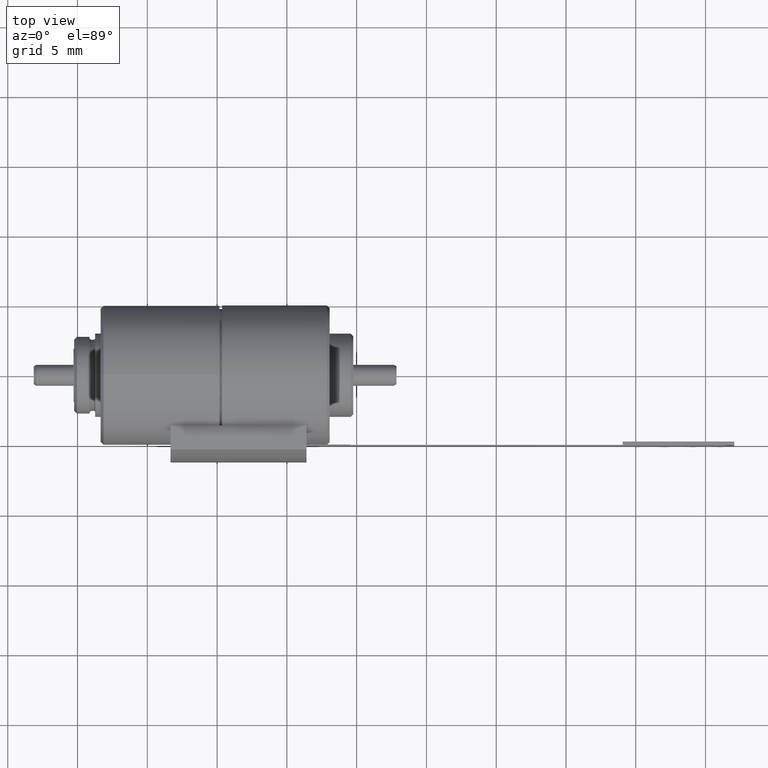
[diagram: clean part render]
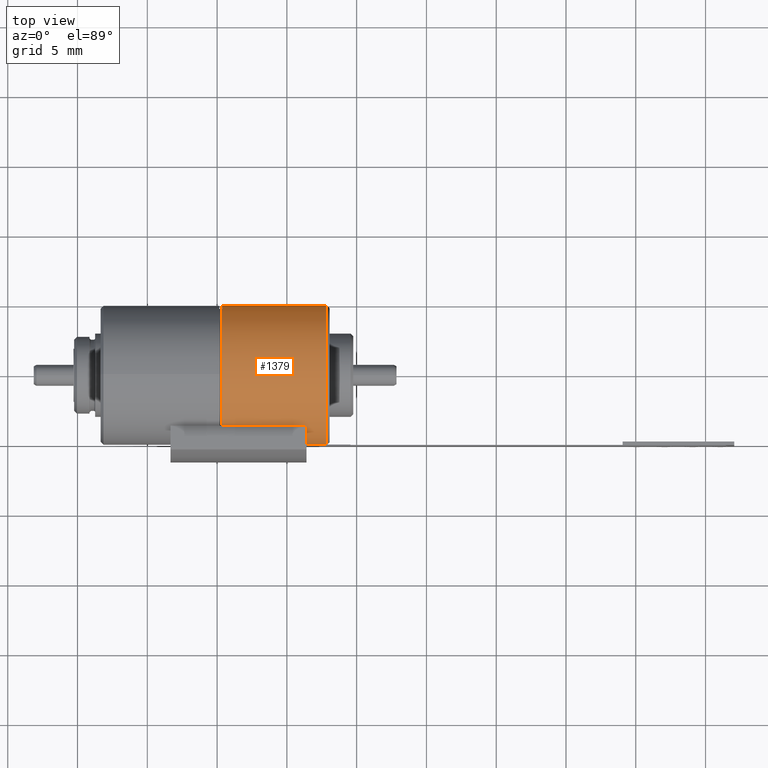
[diagram: same view with one face highlighted and labeled with its STEP entity id]
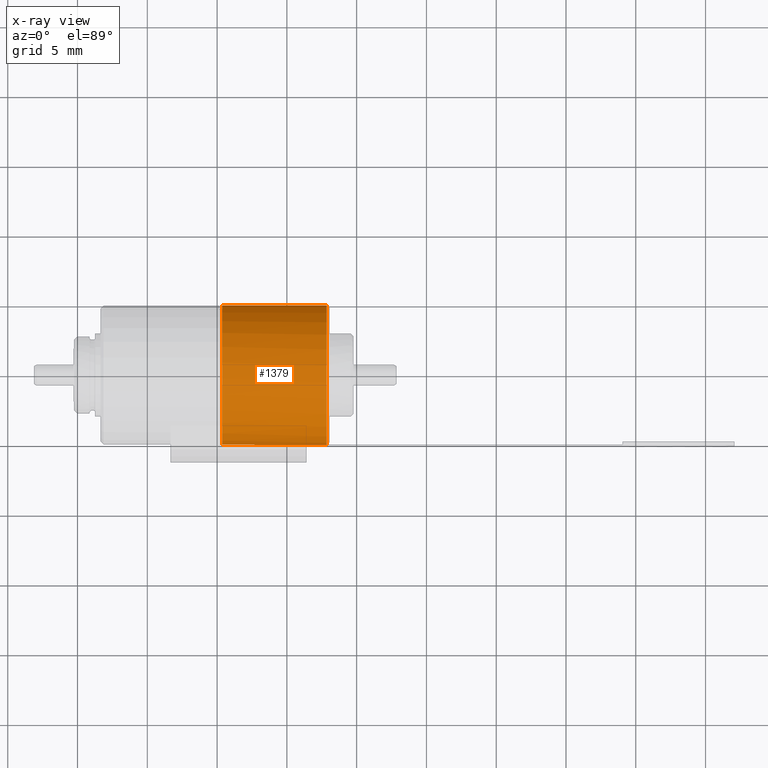
[diagram: x-ray of the same camera — body ghosted, the highlighted face saturated]
A machine part, top view. The second image highlights one B-rep face of the part: STEP entity #1379.
The next image is the same camera in x-ray: the body ghosted, the highlighted face saturated — about 0% of this face is hidden behind the body in this view.
In plain terms, the highlighted cylindrical surface (partial cylindrical patch) has radius 5 mm, axis along (-1, 0, 0).
Its self-contained STEP definition (entity closure, byte-faithful):
#1150=CARTESIAN_POINT('',(8.5E0,0.E0,0.E0));
#1151=DIRECTION('',(-1.E0,0.E0,0.E0));
#1152=DIRECTION('',(0.E0,-1.E0,0.E0));
#1153=AXIS2_PLACEMENT_3D('',#1150,#1151,#1152);
#1155=DIRECTION('',(-1.E0,1.274021343203E-8,3.032849612398E-7));
#1156=VECTOR('',#1155,5.193596117465E0);
#1157=CARTESIAN_POINT('',(8.5E0,-5.E0,0.E0));
#1158=LINE('',#1157,#1156);
#1159=DIRECTION('',(-1.E0,1.697128866748E-8,-2.846423522316E-13));
#1160=VECTOR('',#1159,2.301244278631E0);
#1161=CARTESIAN_POINT('',(3.301244278631E0,-4.974937231680E0,
4.999999993001E-1));
#1162=LINE('',#1161,#1160);
#1163=DIRECTION('',(-1.E0,0.E0,0.E0));
#1164=VECTOR('',#1163,7.5E0);
#1165=CARTESIAN_POINT('',(8.5E0,5.E0,0.E0));
#1166=LINE('',#1165,#1164);
#1171=CARTESIAN_POINT('',(1.E0,0.E0,0.E0));
#1172=DIRECTION('',(1.E0,0.E0,0.E0));
#1173=DIRECTION('',(0.E0,1.E0,0.E0));
#1174=AXIS2_PLACEMENT_3D('',#1171,#1172,#1173);
#1215=CARTESIAN_POINT('',(3.301244278631E0,-4.974937231680E0,
4.999999993001E-1));
#1216=CARTESIAN_POINT('',(3.302400257291E0,-4.980503368899E0,
4.446176330015E-1));
#1217=CARTESIAN_POINT('',(3.304313601083E0,-4.989779503742E0,
3.337354788044E-1));
#1218=CARTESIAN_POINT('',(3.306026193751E0,-4.998142646878E0,
1.669459447545E-1));
#1219=CARTESIAN_POINT('',(3.306403882536E0,-4.999999933832E0,
5.567367397318E-2));
#1220=CARTESIAN_POINT('',(3.306403882536E0,-4.999999933832E0,
1.575139596568E-6));
#1283=CARTESIAN_POINT('',(8.5E0,5.E0,0.E0));
#1284=VERTEX_POINT('',#1283);
#1285=CARTESIAN_POINT('',(8.5E0,-5.E0,0.E0));
#1286=VERTEX_POINT('',#1285);
#1287=CARTESIAN_POINT('',(3.306403882536E0,-4.999999933832E0,
1.575139596568E-6));
#1288=VERTEX_POINT('',#1287);
#1289=VERTEX_POINT('',#1215);
#1290=CARTESIAN_POINT('',(1.E0,-4.974937192625E0,4.999999992995E-1));
#1291=VERTEX_POINT('',#1290);
#1292=CARTESIAN_POINT('',(1.E0,5.E0,0.E0));
#1293=VERTEX_POINT('',#1292);
#1361=CARTESIAN_POINT('',(2.424654622742E0,0.E0,0.E0));
#1362=DIRECTION('',(-1.E0,0.E0,0.E0));
#1363=DIRECTION('',(0.E0,-1.E0,0.E0));
#1364=AXIS2_PLACEMENT_3D('',#1361,#1362,#1363);
#1365=CYLINDRICAL_SURFACE('',#1364,5.E0);
#1366=ORIENTED_EDGE('',*,*,#1355,.F.);
#1368=ORIENTED_EDGE('',*,*,#1367,.T.);
#1370=ORIENTED_EDGE('',*,*,#1369,.F.);
#1372=ORIENTED_EDGE('',*,*,#1371,.T.);
#1374=ORIENTED_EDGE('',*,*,#1373,.F.);
#1376=ORIENTED_EDGE('',*,*,#1375,.F.);
#1377=EDGE_LOOP('',(#1366,#1368,#1370,#1372,#1374,#1376));
#1378=FACE_OUTER_BOUND('',#1377,.F.);
#1379=ADVANCED_FACE('',(#1378),#1365,.T.);
#1154=CIRCLE('',#1153,5.E0);
#1175=CIRCLE('',#1174,5.E0);
#1221=B_SPLINE_CURVE_WITH_KNOTS('',3,(#1215,#1216,#1217,#1218,#1219,#1220),
.UNSPECIFIED.,.F.,.F.,(4,1,1,4),(0.E0,3.333333333333E-1,6.666666666667E-1,1.E0),
.UNSPECIFIED.);
#1355=EDGE_CURVE('',#1286,#1284,#1154,.T.);
#1367=EDGE_CURVE('',#1286,#1288,#1158,.T.);
#1369=EDGE_CURVE('',#1289,#1288,#1221,.T.);
#1371=EDGE_CURVE('',#1289,#1291,#1162,.T.);
#1373=EDGE_CURVE('',#1293,#1291,#1175,.T.);
#1375=EDGE_CURVE('',#1284,#1293,#1166,.T.);